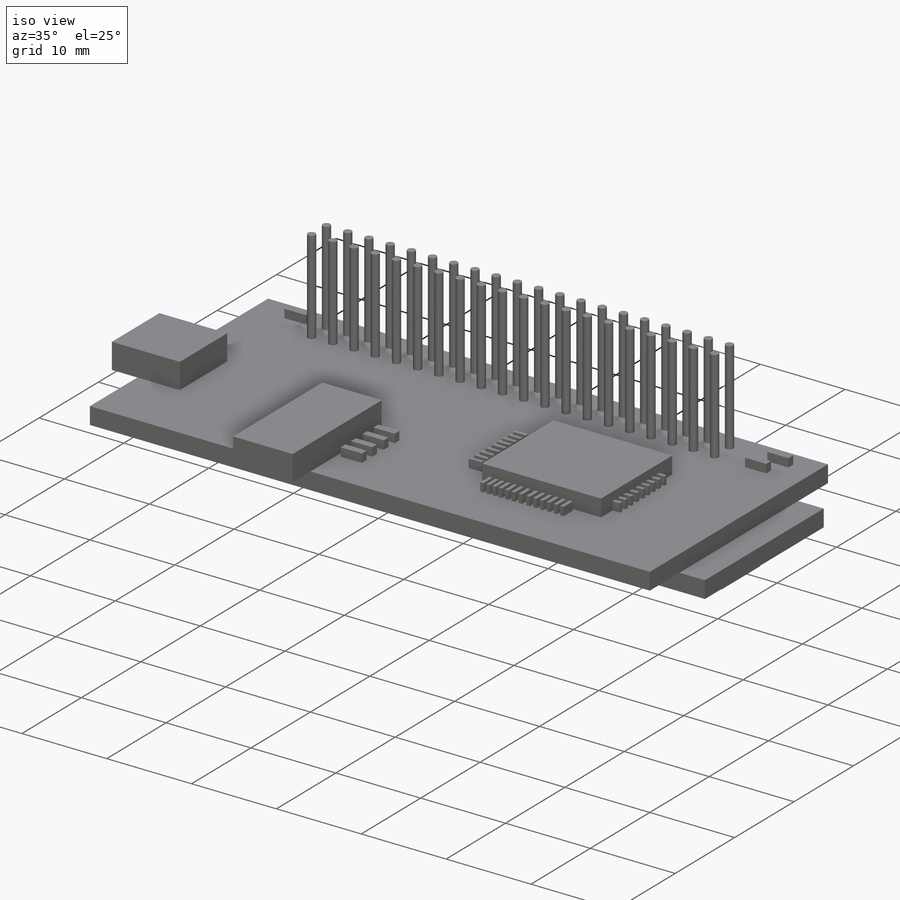
[diagram: iso view]
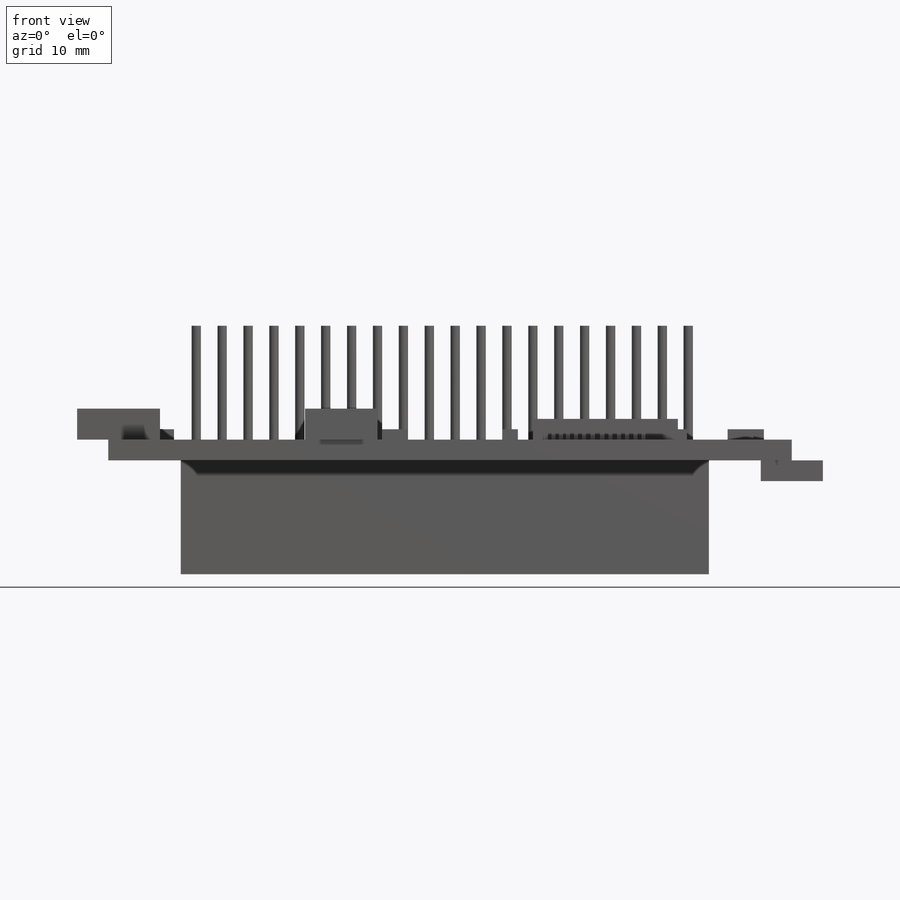
[diagram: front view]
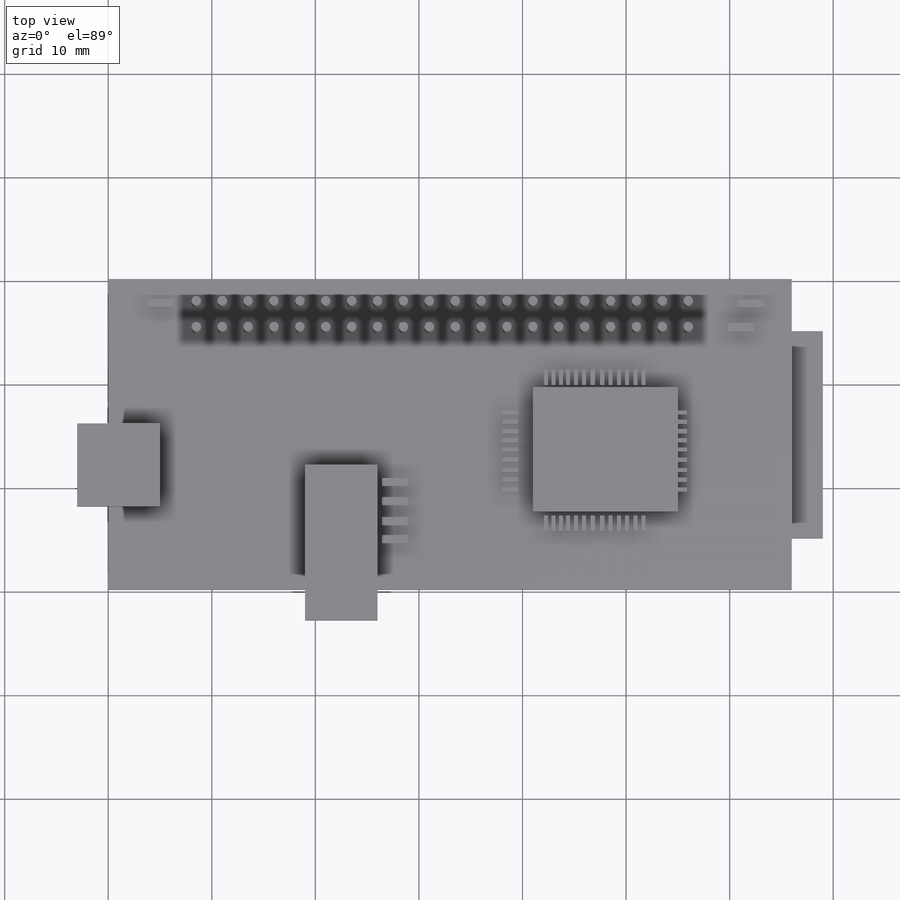
[diagram: top view]
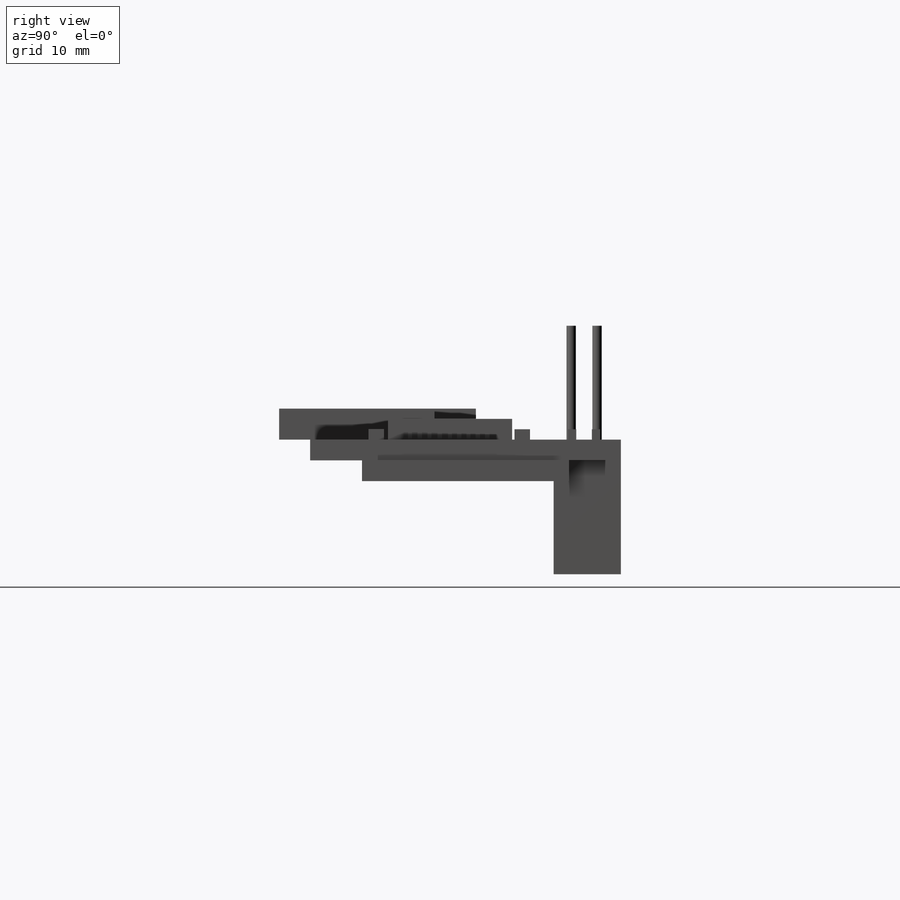
[diagram: right view]
SOLIDWORKS PART (.sldprt)
format: sldprt  version: not decoded by parser v0  size: 585,728 bytes
history: native  units: mm
features: sketch x9, extrude x9, material x1 (+11 scaffold rows collapsed)
feature tree (30):
  scaffold x11  (default folders/planes/origin — collapsed)
  material  "Material <not specified>"
  sketch  "Sketch1"  dims[D1=66.0mm D2=30.0mm]
  extrude  "Boss-Extrude1"  Depth=2mm
  sketch  "Sketch2"  dims[D1=0.9mm D6=0.9mm D2=8.5mm D3=2.3mm D4=2.5mm D5=8.5mm D7=20.0]
  extrude  "Boss-Extrude2"  Depth=11mm
  sketch  "Sketch3"  dims[D1=0.8mm D2=2.5mm D3=2.0mm D4=2.7mm]
  extrude  "Boss-Extrude3"  Depth=1mm
  sketch  "Sketch4"  dims[c1.D1=11.6mm c1.D2=7.0mm c1.D3=19.0mm c2.D1=19.0mm c2.D3=3.0mm c2.D4=15.0mm]
  extrude  "Boss-Extrude4"  Depth=3mm
  sketch  "Sketch6"  dims[c1.D1=8.0mm c1.D2=4.7mm c1.D3=8.0mm c1.D4=8.0mm c2.D1=3.0mm c2.D2=8.0mm c2.D3=8.0mm c2.D4=8.0mm]
  extrude  "Boss-Extrude6"  Depth=3mm
  sketch  "Sketch7"  dims[D1=12.0mm D2=14.0mm D3=11.0mm D4=7.5mm]
  extrude  "Boss-Extrude7"  Depth=2mm
  sketch  "Sketch9"  dims[c1.D1=1.5mm c1.D2=1.5mm c1.D3=1.5mm c1.D4=1.5mm c2.D1=0.2mm c2.D2=0.2mm]
  extrude  "Boss-Extrude8"  Depth=1mm
  sketch  "Sketch10"  dims[D1=5.0mm D2=20.0mm D3=6.0mm D4=3.0mm]
  extrude  "Boss-Extrude9"  Depth=2mm
  sketch  "Sketch11"  dims[D1=7.0mm D2=51.0mm D3=6.5mm]
  extrude  "Boss-Extrude10"  Depth=11mm
decode coverage: 18 of 18 modeling features carry decoded parameters
note: suppression state not decoded; provenance and decode notes live in map.json
